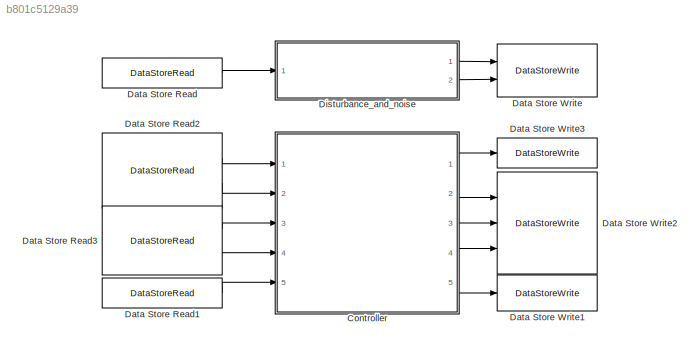
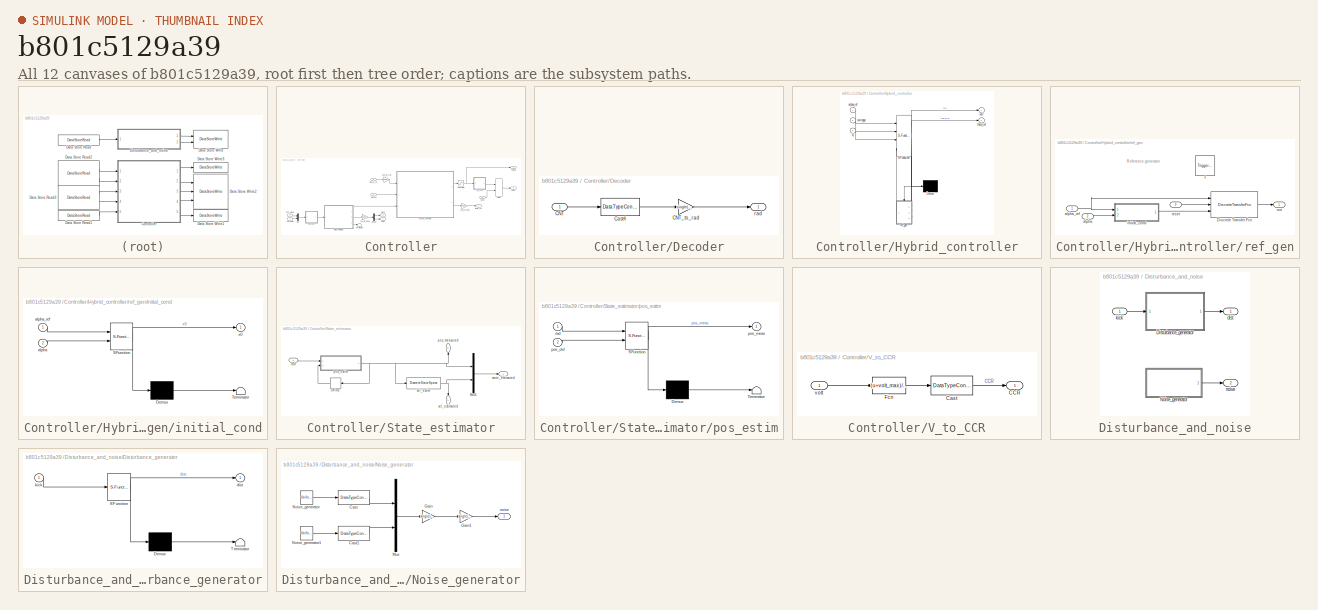
[diagram: thumbnail index - all 12 canvases of the model, root first then tree order]
MODEL slx_b801c5129a39
KIND model
CONFIG AbsTol = auto
CONFIG EnableMultiTasking = off
CONFIG FixedStep = Ts_ctrl
CONFIG MaxStep = auto
CONFIG MinStep = auto
CONFIG RelTol = 1e-3
CONFIG SampleTimeConstraint = Unconstrained
CONFIG Solver = FixedStepDiscrete
CONFIG SolverName = FixedStepDiscrete
CONFIG StartTime = 0.0
CONFIG StopTime = 25
WORKSPACE source: external: MAT-File  (data not in archive)
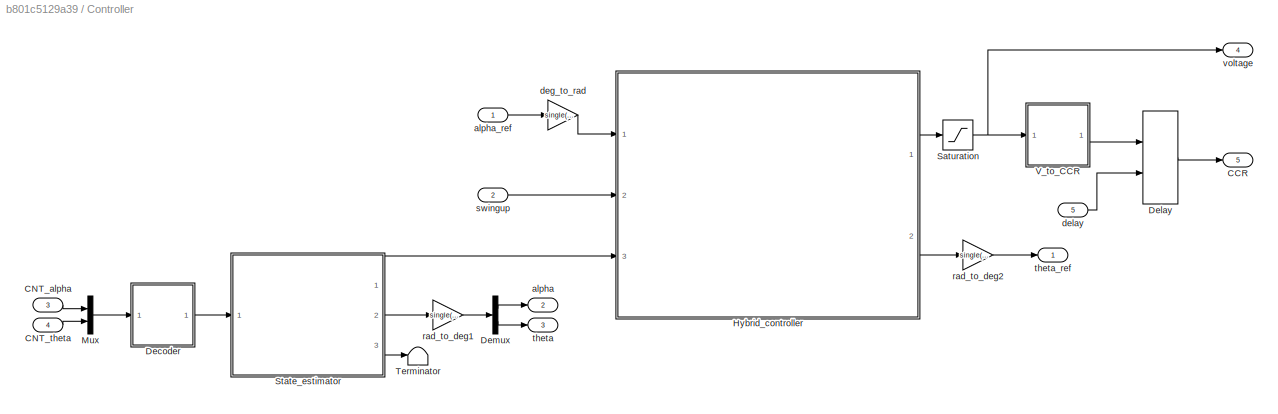
BLOCK [SubSystem] Controller
  FunctionInterfaceSpec = Allow arguments
  Ports = [5, 5]
  RTWFcnName = controller
  RTWFcnNameOpts = User specified
  RTWFileName = controller
  RTWFileNameOpts = User specified
  RTWSystemCode = Nonreusable function
  RequestExecContextInheritance = off
  TreatAsAtomicUnit = on
BLOCK [Outport] Controller/CCR
  IconDisplay = Port number
  Port = 5
BLOCK [Inport] Controller/CNT_alpha
  IconDisplay = Port number
  Port = 3
BLOCK [Inport] Controller/CNT_theta
  IconDisplay = Port number
  Port = 4
BLOCK [SubSystem] Controller/Decoder
  Ports = [1, 1]
  RequestExecContextInheritance = off
BLOCK [Inport] Controller/Decoder/CNT
  IconDisplay = Port number
BLOCK [Gain] Controller/Decoder/CNT_to_rad
  Gain = single(2*pi)/encoder_res
  OutDataTypeStr = Inherit: Inherit via internal rule
  ParamDataTypeStr = Inherit: Inherit via internal rule
  SaturateOnIntegerOverflow = off
BLOCK [DataTypeConversion] Controller/Decoder/Cast4
  OutDataTypeStr = single
  RndMeth = Floor
  SaturateOnIntegerOverflow = off
BLOCK [Outport] Controller/Decoder/rad
  IconDisplay = Port number
BLOCK [Delay] Controller/Delay
  DelayLength = delay_input
  DelayLengthSource = Input port
  DelayLengthUpperLimit = 255
  InitialCondition = state_board_init.CCR
  InputPortMap = u0,p1
  Ports = [2, 1]
BLOCK [Demux] Controller/Demux
  DisplayOption = bar
  Outputs = 2
  Ports = [1, 2]
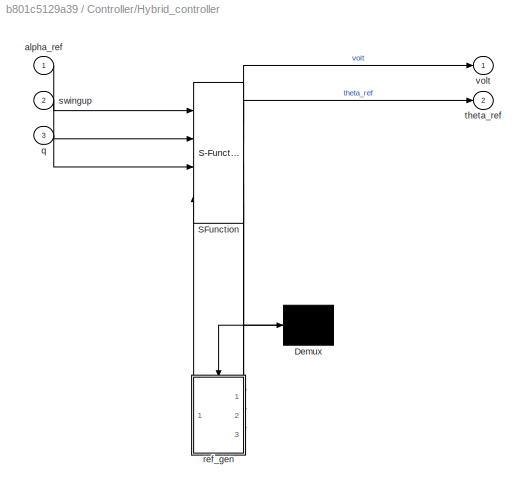
BLOCK [SubSystem] Controller/Hybrid_controller
  BlockKeywords = __PRM__SERIALIZED__DATA__:Stateflow Chart,Stateflow Diagram
  ErrorFcn = Stateflow.Translate.translate
  PermitHierarchicalResolution = ExplicitOnly
  Ports = [3, 2]
  RequestExecContextInheritance = off
  SFBlockType = Chart
  TreatAsAtomicUnit = on
BLOCK [Demux] Controller/Hybrid_controller/ Demux 
  Outputs = 1
  Ports = [1, 1]
BLOCK [S-Function] Controller/Hybrid_controller/ SFunction 
  EnableBusSupport = on
  FunctionName = sf_sfun
  Parameters = Jp,Larm,g,lp,mp,par_ctrl,th_lim,volt_max
  PortCounts = [4 6]
  Ports = [4, 6]
  SFcnIsStateOwnerBlock = off
  SFunctionDeploymentMode = off
  Tag = Stateflow S-Function 5
BLOCK [Inport] Controller/Hybrid_controller/alpha_ref
  IconDisplay = Port number
BLOCK [Inport] Controller/Hybrid_controller/q
  IconDisplay = Port number
  Port = 3
BLOCK [SubSystem] Controller/Hybrid_controller/ref_gen
  Ports = [3, 1, 0, 1]
  PreDeleteFcn = Stateflow.SLINSF.SimulinkMan.removePreDeleteFcn
  RequestExecContextInheritance = off
  UndoDeleteFcn = Stateflow.SLINSF.SimulinkMan.restorePreDeleteFcn
BLOCK [DiscreteTransferFcn] Controller/Hybrid_controller/ref_gen/Discrete Transfer Fcn
  Denominator = par_ctrl.ref_gen_den
  ExternalReset = Falling
  InitialStatesSource = Input port
  InputPortMap = u0,r7,p5
  Numerator = par_ctrl.ref_gen_num
  Ports = [3, 1]
BLOCK [Inport] Controller/Hybrid_controller/ref_gen/alpha
  IconDisplay = Port number
  OutDataTypeStr = single
  Port = 2
  PortDimensions = 1
  SignalType = real
  VarSizeSig = No
BLOCK [Inport] Controller/Hybrid_controller/ref_gen/alpha_ref
  IconDisplay = Port number
  OutDataTypeStr = single
  PortDimensions = 1
  SignalType = real
  VarSizeSig = No
BLOCK [TriggerPort] Controller/Hybrid_controller/ref_gen/f
  CopyFcn = Stateflow.SLINSF.SimulinkMan.removeBlockPreDeleteFcn
  Ports = []
  PreDeleteFcn = Stateflow.SLINSF.SimulinkMan.unsafePredeleteFcn
  StatesWhenEnabling = held
  TriggerType = function-call
  VariantControl = (inherit)
BLOCK [SubSystem] Controller/Hybrid_controller/ref_gen/initial_cond
  ErrorFcn = Stateflow.Translate.translate
  PermitHierarchicalResolution = ExplicitOnly
  Ports = [2, 1]
  RequestExecContextInheritance = off
  SFBlockType = MATLAB Function
BLOCK [Demux] Controller/Hybrid_controller/ref_gen/initial_cond/ Demux 
  Outputs = 1
  Ports = [1, 1]
BLOCK [S-Function] Controller/Hybrid_controller/ref_gen/initial_cond/ SFunction 
  EnableBusSupport = off
  FunctionName = sf_sfun
  Parameters = par_ctrl
  PortCounts = [2 2]
  Ports = [2, 2]
  SFcnIsStateOwnerBlock = off
  SFunctionDeploymentMode = off
  Tag = Stateflow S-Function 9
BLOCK [Terminator] Controller/Hybrid_controller/ref_gen/initial_cond/ Terminator 
BLOCK [Inport] Controller/Hybrid_controller/ref_gen/initial_cond/alpha
  IconDisplay = Port number
  Port = 2
BLOCK [Inport] Controller/Hybrid_controller/ref_gen/initial_cond/alpha_ref
  IconDisplay = Port number
BLOCK [Outport] Controller/Hybrid_controller/ref_gen/initial_cond/x0
  IconDisplay = Port number
BLOCK [Outport] Controller/Hybrid_controller/ref_gen/out
  IconDisplay = Port number
  OutDataTypeStr = single
BLOCK [Inport] Controller/Hybrid_controller/ref_gen/reset
  IconDisplay = Port number
  OutDataTypeStr = int8
  Port = 3
  PortDimensions = 1
  SignalType = real
  VarSizeSig = No
BLOCK [Inport] Controller/Hybrid_controller/swingup
  IconDisplay = Port number
  Port = 2
BLOCK [Outport] Controller/Hybrid_controller/theta_ref
  IconDisplay = Port number
  Port = 2
BLOCK [Outport] Controller/Hybrid_controller/volt
  IconDisplay = Port number
BLOCK [Mux] Controller/Mux
  DisplayOption = bar
  Inputs = 2
  Ports = [2, 1]
BLOCK [Saturate] Controller/Saturation
  InputPortMap = u0
  LowerLimit = -volt_max
  Ports = [1, 1]
  UpperLimit = volt_max
BLOCK [SubSystem] Controller/State_estimator
  Ports = [1, 3]
  RequestExecContextInheritance = off
BLOCK [Delay] Controller/State_estimator/Delay
  DelayLength = 1
  InitialCondition = [state_pc_init.alpha;state_pc_init.theta]
  InputPortMap = u0
  Ports = [1, 1]
BLOCK [Mux] Controller/State_estimator/Mux1
  DisplayOption = bar
  Inputs = 2
  Ports = [2, 1]
BLOCK [SubSystem] Controller/State_estimator/pos_estim
  ErrorFcn = Stateflow.Translate.translate
  PermitHierarchicalResolution = ExplicitOnly
  Ports = [2, 1]
  RequestExecContextInheritance = off
  SFBlockType = MATLAB Function
BLOCK [Demux] Controller/State_estimator/pos_estim/ Demux 
  Outputs = 1
  Ports = [1, 1]
BLOCK [S-Function] Controller/State_estimator/pos_estim/ SFunction 
  EnableBusSupport = on
  FunctionName = sf_sfun
  PortCounts = [2 2]
  Ports = [2, 2]
  SFcnIsStateOwnerBlock = off
  SFunctionDeploymentMode = off
  Tag = Stateflow S-Function 4
BLOCK [Terminator] Controller/State_estimator/pos_estim/ Terminator 
BLOCK [Outport] Controller/State_estimator/pos_estim/pos_meas
  IconDisplay = Port number
BLOCK [Inport] Controller/State_estimator/pos_estim/pos_old
  IconDisplay = Port number
  Port = 2
BLOCK [Inport] Controller/State_estimator/pos_estim/rad
  IconDisplay = Port number
BLOCK [Outport] Controller/State_estimator/pos_measured
  IconDisplay = Port number
  Port = 2
BLOCK [Inport] Controller/State_estimator/rad
  IconDisplay = Port number
BLOCK [Outport] Controller/State_estimator/state_estimated
  IconDisplay = Port number
BLOCK [DiscreteStateSpace] Controller/State_estimator/vel_estim
  A = dpole_cut*eye(2)
  B = eye(2)
  C = -1/single(Ts_ctrl)*(1-dpole_cut)^2*eye(2)
  D = (1-dpole_cut)/single(Ts_ctrl)*eye(2)
  InitialCondition = 1/(1-dpole_cut)*eye(2)*[state_pc_init.alpha;state_pc_init.theta]
  SampleTime = Ts_ctrl
BLOCK [Outport] Controller/State_estimator/vel_estimated
  IconDisplay = Port number
  Port = 3
BLOCK [Terminator] Controller/Terminator
BLOCK [SubSystem] Controller/V_to_CCR
  Ports = [1, 1]
  RequestExecContextInheritance = off
BLOCK [Outport] Controller/V_to_CCR/CCR
  IconDisplay = Port number
BLOCK [DataTypeConversion] Controller/V_to_CCR/Cast
  OutDataTypeStr = uint16
  RndMeth = Round
  SaturateOnIntegerOverflow = off
BLOCK [Fcn] Controller/V_to_CCR/Fcn
  Expr = (u+volt_max)/(2*volt_max)*CCR_max
BLOCK [Inport] Controller/V_to_CCR/volt
  IconDisplay = Port number
BLOCK [Outport] Controller/alpha
  IconDisplay = Port number
  Port = 2
BLOCK [Inport] Controller/alpha_ref
  IconDisplay = Port number
BLOCK [Gain] Controller/deg_to_rad
  Gain = single(pi/180)
  OutDataTypeStr = Inherit: Inherit via internal rule
  ParamDataTypeStr = Inherit: Inherit via internal rule
  SaturateOnIntegerOverflow = off
BLOCK [Inport] Controller/delay
  IconDisplay = Port number
  Port = 5
BLOCK [Gain] Controller/rad_to_deg1
  Gain = single(180/pi)
  OutDataTypeStr = Inherit: Inherit via internal rule
  ParamDataTypeStr = Inherit: Inherit via internal rule
  SaturateOnIntegerOverflow = off
BLOCK [Gain] Controller/rad_to_deg2
  Gain = single(180/pi)
  OutDataTypeStr = Inherit: Inherit via internal rule
  ParamDataTypeStr = Inherit: Inherit via internal rule
  SaturateOnIntegerOverflow = off
BLOCK [Inport] Controller/swingup
  IconDisplay = Port number
  Port = 2
BLOCK [Outport] Controller/theta
  IconDisplay = Port number
  Port = 3
BLOCK [Outport] Controller/theta_ref
  IconDisplay = Port number
BLOCK [Outport] Controller/voltage
  IconDisplay = Port number
  Port = 4
BLOCK [DataStoreRead] Data Store Read
  DataStoreElements = dn.kick
  DataStoreName = dn
  Ports = [0, 1]
BLOCK [DataStoreRead] Data Store Read1
  DataStoreElements = dn.delay
  DataStoreName = dn
  Ports = [0, 1]
BLOCK [DataStoreRead] Data Store Read2
  DataStoreElements = ref.alpha#ref.swingup
  DataStoreName = ref
  Ports = [0, 2]
BLOCK [DataStoreRead] Data Store Read3
  DataStoreElements = state_board.CNT_alpha#state_board.CNT_theta
  DataStoreName = state_board
  Ports = [0, 2]
BLOCK [DataStoreWrite] Data Store Write
  DataStoreElements = dn.dist#dn.noise
  DataStoreName = dn
  Ports = [2]
BLOCK [DataStoreWrite] Data Store Write1
  DataStoreElements = state_board.CCR
  DataStoreName = state_board
  Ports = [1]
BLOCK [DataStoreWrite] Data Store Write2
  DataStoreElements = state_pc.alpha#state_pc.theta#state_pc.voltage
  DataStoreName = state_pc
  Ports = [3]
BLOCK [DataStoreWrite] Data Store Write3
  DataStoreElements = ref.theta
  DataStoreName = ref
  Ports = [1]
BLOCK [SubSystem] Disturbance_and_noise
  FunctionInterfaceSpec = Allow arguments
  Ports = [1, 2]
  RTWFcnName = disturbance_and_noise
  RTWFcnNameOpts = User specified
  RTWFileName = disturbance_and_noise
  RTWFileNameOpts = User specified
  RTWSystemCode = Nonreusable function
  RequestExecContextInheritance = off
  TreatAsAtomicUnit = on
BLOCK [SubSystem] Disturbance_and_noise/Disturbance_generator
  BlockKeywords = __PRM__SERIALIZED__DATA__:Stateflow Chart,Stateflow Diagram
  ErrorFcn = Stateflow.Translate.translate
  PermitHierarchicalResolution = ExplicitOnly
  Ports = [1, 1]
  RequestExecContextInheritance = off
  SFBlockType = Chart
  TreatAsAtomicUnit = on
BLOCK [Demux] Disturbance_and_noise/Disturbance_generator/ Demux 
  Outputs = 1
  Ports = [1, 1]
BLOCK [S-Function] Disturbance_and_noise/Disturbance_generator/ SFunction 
  EnableBusSupport = on
  FunctionName = sf_sfun
  Parameters = par_dn
  PortCounts = [1 2]
  Ports = [1, 2]
  SFcnIsStateOwnerBlock = off
  SFunctionDeploymentMode = off
  Tag = Stateflow S-Function 7
BLOCK [Terminator] Disturbance_and_noise/Disturbance_generator/ Terminator 
BLOCK [Outport] Disturbance_and_noise/Disturbance_generator/dist
  IconDisplay = Port number
BLOCK [Inport] Disturbance_and_noise/Disturbance_generator/kick
  IconDisplay = Port number
BLOCK [SubSystem] Disturbance_and_noise/Noise_generator
  Ports = [0, 1]
  RequestExecContextInheritance = off
BLOCK [DataTypeConversion] Disturbance_and_noise/Noise_generator/Cast
  OutDataTypeStr = single
  RndMeth = Floor
  SaturateOnIntegerOverflow = off
BLOCK [DataTypeConversion] Disturbance_and_noise/Noise_generator/Cast1
  OutDataTypeStr = single
  RndMeth = Floor
  SaturateOnIntegerOverflow = off
BLOCK [Gain] Disturbance_and_noise/Noise_generator/Gain
  Gain = single(2*pi)/encoder_res
  OutDataTypeStr = Inherit: Inherit via internal rule
  ParamDataTypeStr = Inherit: Inherit via internal rule
  SaturateOnIntegerOverflow = off
BLOCK [Gain] Disturbance_and_noise/Noise_generator/Gain1
  Gain = single(par_dn.noise_amp)
  OutDataTypeStr = Inherit: Inherit via internal rule
  ParamDataTypeStr = Inherit: Inherit via internal rule
  SaturateOnIntegerOverflow = off
BLOCK [Mux] Disturbance_and_noise/Noise_generator/Mux
  DisplayOption = bar
  Inputs = 2
  Ports = [2, 1]
BLOCK [UniformRandomNumber] Disturbance_and_noise/Noise_generator/Noise_generator
  SampleTime = Ts_ctrl
  Seed = 2342
BLOCK [UniformRandomNumber] Disturbance_and_noise/Noise_generator/Noise_generator1
  SampleTime = Ts_ctrl
  Seed = 1558
BLOCK [Outport] Disturbance_and_noise/Noise_generator/noise
  IconDisplay = Port number
BLOCK [Outport] Disturbance_and_noise/dist
  IconDisplay = Port number
BLOCK [Inport] Disturbance_and_noise/kick
  IconDisplay = Port number
BLOCK [Outport] Disturbance_and_noise/noise
  IconDisplay = Port number
  Port = 2
ANNOTATION Controller/Hybrid_controller/ref_gen: Reference generator
LINE Controller/CNT_alpha:1 -> Controller/Mux:1
LINE Controller/CNT_theta:1 -> Controller/Mux:2
LINE Controller/Decoder/CNT:1 -> Controller/Decoder/Cast4:1
LINE Controller/Decoder/CNT_to_rad:1 -> Controller/Decoder/rad:1
LINE Controller/Decoder/Cast4:1 -> Controller/Decoder/CNT_to_rad:1
LINE Controller/Decoder:1 -> Controller/State_estimator:1
LINE Controller/Delay:1 -> Controller/CCR:1
LINE Controller/Demux:1 -> Controller/alpha:1
LINE Controller/Demux:2 -> Controller/theta:1
LINE Controller/Hybrid_controller:1 -> Controller/Saturation:1
LINE Controller/Hybrid_controller:2 -> Controller/rad_to_deg2:1
LINE Controller/Mux:1 -> Controller/Decoder:1
NET Controller/Saturation:1 -> Controller/V_to_CCR:1, Controller/voltage:1
LINE Controller/State_estimator/Delay:1 -> Controller/State_estimator/pos_estim:2
LINE Controller/State_estimator/Mux1:1 -> Controller/State_estimator/state_estimated:1
NET Controller/State_estimator/pos_estim:1 -> Controller/State_estimator/Delay:1, Controller/State_estimator/Mux1:1, Controller/State_estimator/pos_measured:1, Controller/State_estimator/vel_estim:1
LINE Controller/State_estimator/rad:1 -> Controller/State_estimator/pos_estim:1
NET Controller/State_estimator/vel_estim:1 -> Controller/State_estimator/Mux1:2, Controller/State_estimator/vel_estimated:1
LINE Controller/State_estimator:1 -> Controller/Hybrid_controller:3
LINE Controller/State_estimator:2 -> Controller/rad_to_deg1:1
LINE Controller/State_estimator:3 -> Controller/Terminator:1
LINE Controller/V_to_CCR/Cast:1 -> Controller/V_to_CCR/CCR:1
LINE Controller/V_to_CCR/Fcn:1 -> Controller/V_to_CCR/Cast:1
LINE Controller/V_to_CCR/volt:1 -> Controller/V_to_CCR/Fcn:1
LINE Controller/V_to_CCR:1 -> Controller/Delay:1
LINE Controller/alpha_ref:1 -> Controller/deg_to_rad:1
LINE Controller/deg_to_rad:1 -> Controller/Hybrid_controller:1
LINE Controller/delay:1 -> Controller/Delay:2
LINE Controller/rad_to_deg1:1 -> Controller/Demux:1
LINE Controller/rad_to_deg2:1 -> Controller/theta_ref:1
LINE Controller/swingup:1 -> Controller/Hybrid_controller:2
LINE Controller:1 -> Data Store Write3:1
LINE Controller:2 -> Data Store Write2:1
LINE Controller:3 -> Data Store Write2:2
LINE Controller:4 -> Data Store Write2:3
LINE Controller:5 -> Data Store Write1:1
LINE Data Store Read1:1 -> Controller:5
LINE Data Store Read2:1 -> Controller:1
LINE Data Store Read2:2 -> Controller:2
LINE Data Store Read3:1 -> Controller:3
LINE Data Store Read3:2 -> Controller:4
LINE Data Store Read:1 -> Disturbance_and_noise:1
LINE Disturbance_and_noise/Disturbance_generator:1 -> Disturbance_and_noise/dist:1
LINE Disturbance_and_noise/Noise_generator/Cast1:1 -> Disturbance_and_noise/Noise_generator/Mux:2
LINE Disturbance_and_noise/Noise_generator/Cast:1 -> Disturbance_and_noise/Noise_generator/Mux:1
LINE Disturbance_and_noise/Noise_generator/Gain1:1 -> Disturbance_and_noise/Noise_generator/noise:1
LINE Disturbance_and_noise/Noise_generator/Gain:1 -> Disturbance_and_noise/Noise_generator/Gain1:1
LINE Disturbance_and_noise/Noise_generator/Mux:1 -> Disturbance_and_noise/Noise_generator/Gain:1
LINE Disturbance_and_noise/Noise_generator/Noise_generator1:1 -> Disturbance_and_noise/Noise_generator/Cast1:1
LINE Disturbance_and_noise/Noise_generator/Noise_generator:1 -> Disturbance_and_noise/Noise_generator/Cast:1
LINE Disturbance_and_noise/Noise_generator:1 -> Disturbance_and_noise/noise:1
LINE Disturbance_and_noise/kick:1 -> Disturbance_and_noise/Disturbance_generator:1
LINE Disturbance_and_noise:1 -> Data Store Write:1
LINE Disturbance_and_noise:2 -> Data Store Write:2
note: NET lines group one-source signal fan-out (src -> all destinations, sorted); 1:1 wires keep LINE
CHART Controller/State_estimator/pos_estim states=1 transitions=1
  STATE_LABEL 'eML_blk_kernel()'
  STATE_LABEL 'SCRIPT:\nfunction pos_meas = pos_estim(rad,pos_old)\n\nsect = @(th)mod(int8(floor(th/single(pi/2))),int8(4));\n\npos_meas = floor(pos_old/single(2*pi))*single(2*pi) +...\n           mod(rad,single(2*pi));\n\nfor k=1:2\n    if sect(pos_old(k)) == int8(3) && sect(rad(k)) == int8(0)\n        pos_meas(k) = pos_meas(k) + single(2*pi);\n    elseif sect(pos_old(k)) == int8(0) && sect(rad(k)) == int8(3)\n        pos_...<+49ch>'
CHART Controller/Hybrid_controller states=9 transitions=8
  STATE_LABEL 'PD_controller_up\nentry:\nref_gen(alpha_ref,q(1),int8(1));\ntheta_ref = round(q(2)/single(2*pi))*single(2*pi);\nentry, during:\nK = [par_ctrl.up_kp_alpha,...\n    par_ctrl.up_kp_theta,...\n    par_ctrl.up_kd_alpha,...\n    par_ctrl.up_kd_theta];\ncontr_pd;'
  STATE_LABEL 'contr_su'
  STATE_LABEL 'SCRIPT:\n% Swing-up controller\n\nfunction contr_su\n\nth = q(2);\nth_d = q(4);\n\nif th_d*cos(th) == 0\n    sgn = sign(th);\nelse\n    sgn = sign(th_d*cos(th));\nend\n\nvolt = -volt_max*sgn;'
  STATE_LABEL 'contr_pd'
  STATE_LABEL 'SCRIPT:\n% PD controller with reference generator\n\nfunction contr_pd\n\nq_ref = [ref_gen(alpha_ref,q(1),int8(0)); theta_ref; 0; 0];\nerror = q_ref - q;\nvolt = K * error;'
  STATE_LABEL 'Sliding_mode_controller\nduring:\ntheta_ref = round(q(2)/single(2*pi))*single(2*pi);'
  STATE_LABEL 'Idle\nduring:\nvolt = 0;'
  STATE_LABEL 'Swing_up\nentry, during:\ncontr_su;'
  STATE_LABEL '[energy(q) >= 0]'
  STATE_LABEL '[energy(q) < 0]'
  STATE_LABEL 'Idle\nduring:\nvolt = 0;'
  STATE_LABEL 'Swing_up\nentry, during:\ncontr_su;'
  STATE_LABEL 'ME = energy(state)'
  STATE_LABEL 'SCRIPT:\n% Mechanical energy calculation (kinetic + potential)\n\nfunction ME = energy(state)\n\nth = state(2);\nal_d = state(3);\nth_d = state(4);\n\nME = (Jp*al_d^2)/2 + (Jp*th_d^2)/2 + (Larm^2*al_d^2*mp)/2 - g*lp*mp - (Jp*al_d^2*cos(th)^2)/2 + g*lp*mp*cos(th) + Larm*al_d*lp*mp*th_d*cos(th);\n'
  STATE_LABEL 'PD_controller_down\nentry:\nref_gen(alpha_ref,q(1),int8(1));\nentry, during:\ntheta_ref = (round(q(2)/single(2*pi)+0.5)-0.5)*single(2*pi);\nK = [par_ctrl.down_kp_alpha,...\n    single(0),...\n    par_ctrl.down_kd_alpha,...\n    single(0)];\ncontr_pd;'
  STATE_LABEL 'out = ref_gen(alpha_ref,alpha,reset)'
CHART Disturbance_and_noise/Disturbance_generator states=3 transitions=4
  STATE_LABEL 'Reset\nentry:\ndist = 0;'
  STATE_LABEL 'Off'
  STATE_LABEL 'On\nentry:\ndist = par_dn.dist_amp;'
CHART Controller/Hybrid_controller/ref_gen/initial_cond states=1 transitions=1
  STATE_LABEL 'eML_blk_kernel()'
  STATE_LABEL 'SCRIPT:\nfunction x0 = initial_cond(alpha_ref, alpha, par_ctrl)\n\nx0 = 1/par_ctrl.dpole_ref*(alpha/(1-par_ctrl.dpole_ref)-alpha_ref);\n'
